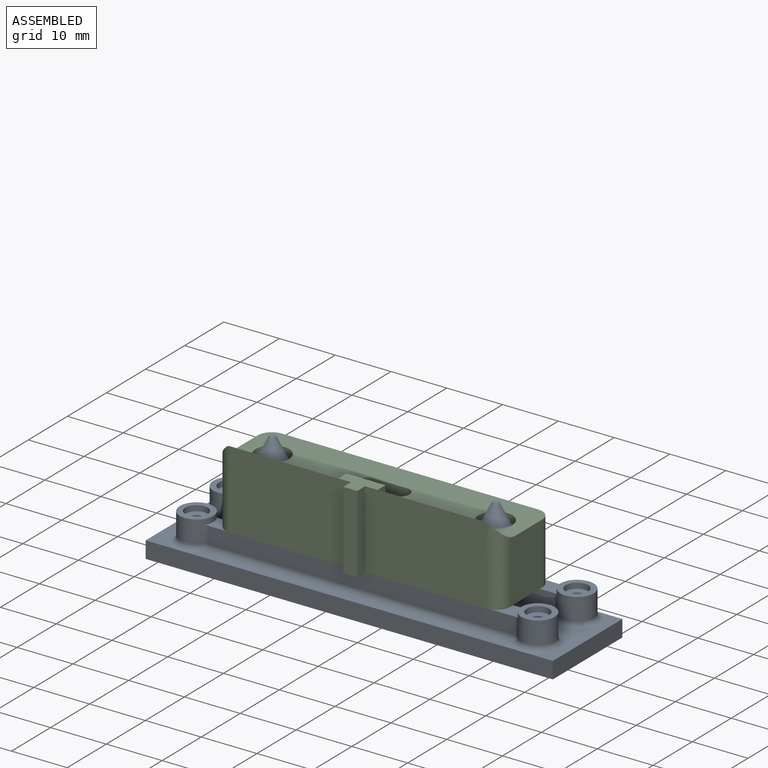
[diagram: assembled view]
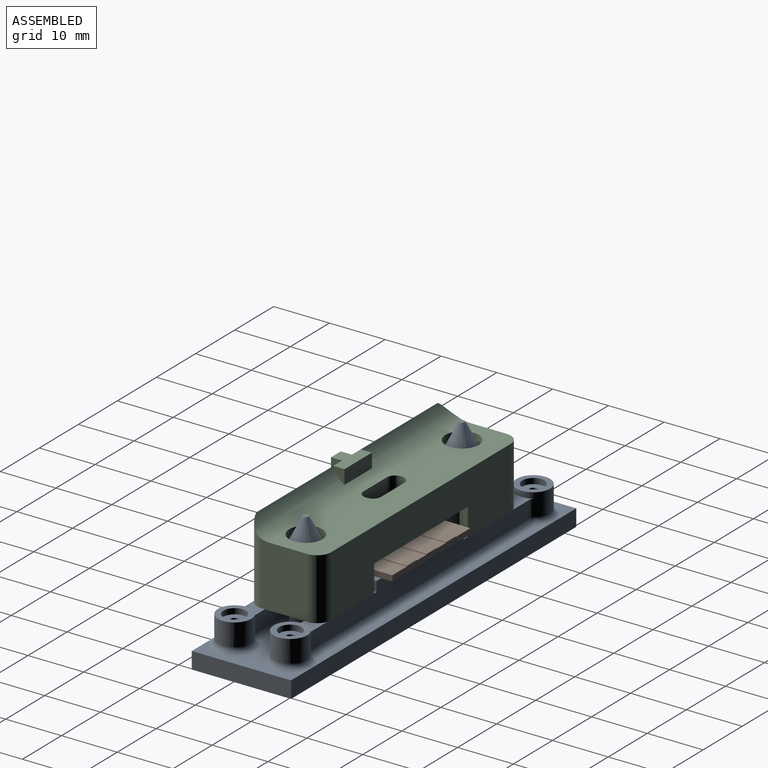
[diagram: assembled view, second angle]
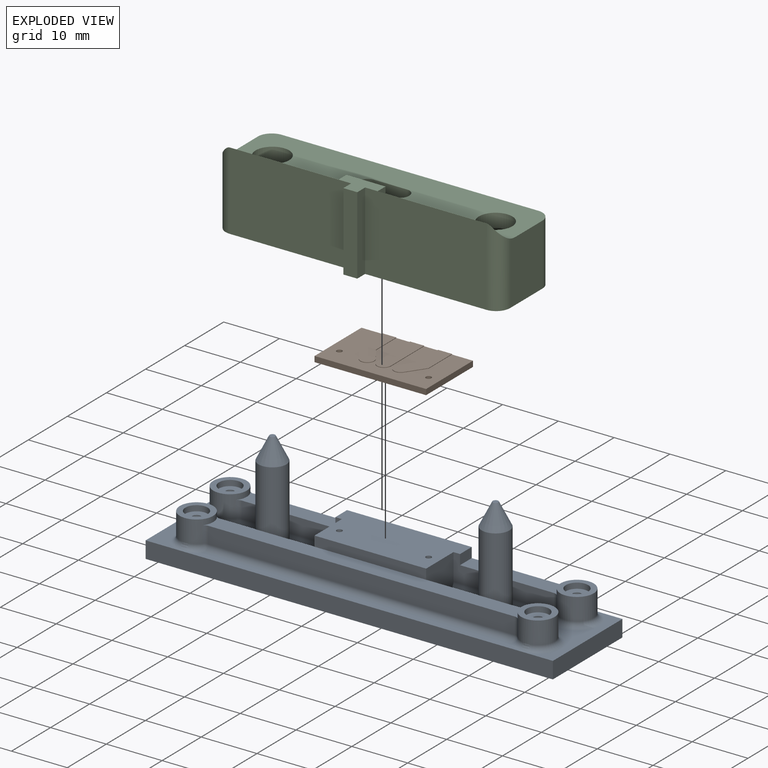
[diagram: exploded view]
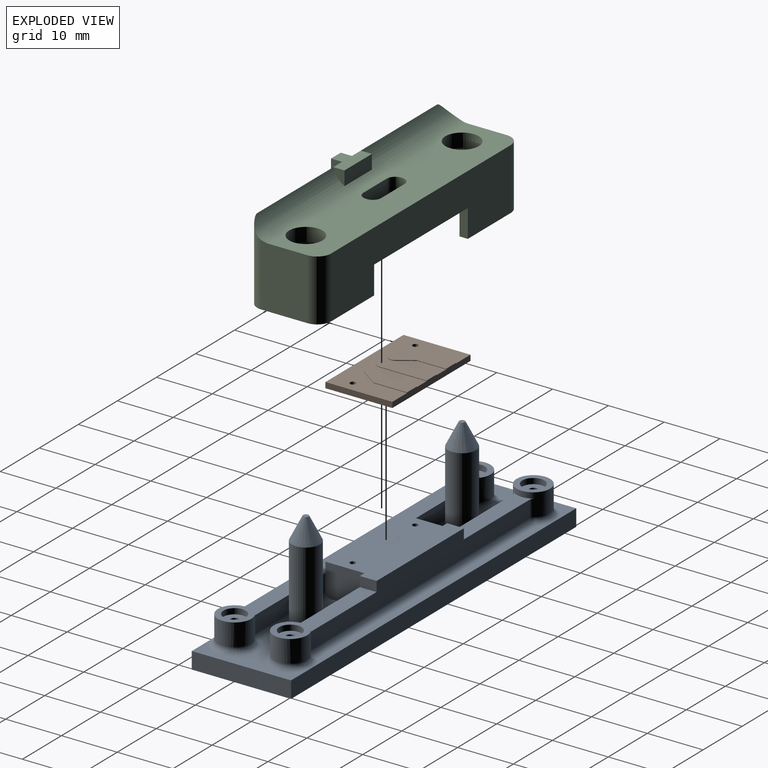
[diagram: exploded view, second angle]
ASSEMBLY  parts=3 mates=2
PART A: 102 faces, bbox 73x19.9x21 mm
  f0: plane 7.55x5mm, normal (0,0,1), area 34.1mm2, adj f20,f96,f99,f101
  f1: plane 60.42x1.4mm, normal (0,0,1), area 80.7mm2, adj f10,f83,f88,f93
  f2: plane 17.8x14.05mm, normal (0,0,1), area 79.1mm2, adj f8,f9,f10,f91,f96,f98,f99,f101
  f3: plane 59.42x1.4mm, normal (0,0,1), area 79.3mm2, adj f8,f75,f80,f86
  f4: plane 17.8x14.05mm, normal (0,0,1), area 85.5mm2, adj f8,f10,f12,f67,f69,f70,f72,f77
  f5: plane 17.58x3.75mm, normal (0,0,1), area 51.2mm2, adj f15,f22,f31,f37,f71,f82
  f6: plane 56.52x3.75mm, normal (0,0,1), area 166.5mm2, adj f17,f18,f19,f27,f29,f38,f66,f76
  f7: plane 7.55x5mm, normal (0,0,1), area 34.1mm2, adj f16,f67,f69,f72
  f8: plane 73.01x3.01mm, normal (0,-1,0), area 219mm2, adj f2,f3,f4,f9,f12,f14,f73,f89
  f9: plane 17.8x3mm, normal (1,0,0), area 53.4mm2, adj f2,f8,f10,f14
  f10: plane 73.01x3.01mm, normal (0,1,0), area 219mm2, adj f1,f2,f4,f9,f12,f14,f79,f95
  f11: cylinder r=0.5mm len=8.8mm, axis (0,0,-1), area 27.6mm2, adj f14,f39
  f12: plane 17.8x3mm, normal (-1,0,0), area 53.4mm2, adj f4,f8,f10,f14
  f13: cylinder r=0.5mm len=8.8mm, axis (0,0,-1), area 27.6mm2, adj f14,f39
  f14: plane 73x17.8mm, normal (0,0,-1), area 1247.6mm2, adj f8,f9,f10,f11,f12,f13,f40,f42
  f15: plane 17.98x4.8mm, normal (0,-1,0), area 56mm2, adj f5,f16,f37,f39,f71,f72
  f16: plane 7x5.8mm, normal (-1,0,0), area 40.2mm2, adj f7,f15,f17,f38,f39,f67,f72
  f17: plane 16.98x3mm, normal (0,1,0), area 50.9mm2, adj f6,f16,f66,f67
  f18: plane 54.96x3mm, normal (0,-1,0), area 164.9mm2, adj f6,f76,f80,f81
  f19: plane 17.98x3mm, normal (0,1,0), area 53.9mm2, adj f6,f20,f92,f96
  f20: plane 7x5.8mm, normal (1,0,0), area 40.2mm2, adj f0,f19,f21,f38,f39,f96,f101
  f21: plane 17.98x4.8mm, normal (0,-1,0), area 56mm2, adj f20,f23,f36,f39,f97,f101
  f22: plane 55.96x4.8mm, normal (0,1,0), area 208.1mm2, adj f5,f23,f36,f37,f39,f82,f87,f88
  f23: plane 17.58x3.75mm, normal (0,0,1), area 51.2mm2, adj f21,f22,f25,f36,f87,f97
  f24: plane 6x6mm, normal (0,0,1), area 15.7mm2, adj f25,f54
  f25: cylinder r=3mm len=6mm, axis (0,0,-1), area 63.2mm2, adj f23,f24,f87,f93,f95,f97,f98
  f26: plane 6x6mm, normal (0,0,1), area 15.7mm2, adj f27,f52
  f27: cylinder r=3mm len=6mm, axis (0,0,-1), area 63.2mm2, adj f6,f26,f81,f86,f89,f91,f92
  f28: plane 6x6mm, normal (0,0,1), area 15.7mm2, adj f29,f50
  f29: cylinder r=3mm len=6mm, axis (0,0,-1), area 63.2mm2, adj f6,f28,f66,f70,f73,f75,f76
  f30: plane 6x6mm, normal (0,0,1), area 15.7mm2, adj f31,f48
  f31: cylinder r=3mm len=6mm, axis (0,0,-1), area 63.2mm2, adj f5,f30,f71,f77,f79,f82,f83
  f32: cylinder r=2.5mm len=13mm, axis (0,0,-1), area 204.2mm2, adj f57,f69
  f33: plane 1x1mm, normal (0,0,1), area 0.8mm2, adj f57
  f34: cylinder r=2.5mm len=13mm, axis (0,0,-1), area 204.2mm2, adj f56,f99
  f35: plane 1x1mm, normal (0,0,1), area 0.8mm2, adj f56
  f36: plane 3x1.8mm, normal (1,0,0), area 5.4mm2, adj f21,f22,f23,f39
  f37: plane 3x1.8mm, normal (-1,0,0), area 5.4mm2, adj f5,f15,f22,f39
  f38: plane 20x1.8mm, normal (0,-1,0), area 36mm2, adj f6,f16,f20,f39
  f39: plane 22.35x10mm, normal (0,0,1), area 205.5mm2, adj f11,f13,f15,f16,f20,f21,f22,f36
  f40: cylinder r=2mm len=6mm, axis (0,0,-1), area 75.4mm2, adj f14,f41
  f41: plane 4x4mm, normal (0,0,-1), area 12.6mm2, adj f40
  f42: cylinder r=2mm len=6mm, axis (0,0,-1), area 75.4mm2, adj f14,f43
  f43: plane 4x4mm, normal (0,0,-1), area 12.6mm2, adj f42
  f44: cylinder r=2mm len=6mm, axis (0,0,-1), area 75.4mm2, adj f14,f45
  f45: plane 4x4mm, normal (0,0,-1), area 12.6mm2, adj f44
  f46: cylinder r=2mm len=6mm, axis (0,0,-1), area 75.4mm2, adj f14,f47
  f47: plane 4x4mm, normal (0,0,-1), area 12.6mm2, adj f46
  f48: cylinder r=2mm len=4mm, axis (0,0,1), area 12.6mm2, adj f30,f49
  f49: plane 4x4mm, normal (0,0,1), area 10.8mm2, adj f48,f64
  f50: cylinder r=2mm len=4mm, axis (0,0,1), area 12.6mm2, adj f28,f51
  f51: plane 4x4mm, normal (0,0,1), area 10.8mm2, adj f50,f62
  f52: cylinder r=2mm len=4mm, axis (0,0,1), area 12.6mm2, adj f26,f53
  f53: plane 4x4mm, normal (0,0,1), area 10.8mm2, adj f52,f60
  f54: cylinder r=2mm len=4mm, axis (0,0,1), area 12.6mm2, adj f24,f55
  f55: plane 4x4mm, normal (0,0,1), area 10.8mm2, adj f54,f58
  f56: cone r=0.5mm half-angle=26.6deg, axis (0,0,-1), area 42.1mm2, adj f34,f35
  f57: cone r=0.5mm half-angle=26.6deg, axis (0,0,-1), area 42.1mm2, adj f32,f33
  f58: cylinder r=0.75mm len=1.5mm, axis (0,0,1), area 1.9mm2, adj f55,f59
  f59: plane 1.5x1.5mm, normal (0,0,1), area 1.8mm2, adj f58
  f60: cylinder r=0.75mm len=1.5mm, axis (0,0,1), area 1.9mm2, adj f53,f61
  f61: plane 1.5x1.5mm, normal (0,0,1), area 1.8mm2, adj f60
  f62: cylinder r=0.75mm len=1.5mm, axis (0,0,1), area 1.9mm2, adj f51,f63
  f63: plane 1.5x1.5mm, normal (0,0,1), area 1.8mm2, adj f62
  f64: cylinder r=0.75mm len=1.5mm, axis (0,0,1), area 1.9mm2, adj f49,f65
  f65: plane 1.5x1.5mm, normal (0,0,1), area 1.8mm2, adj f64
  f66: cylinder r=1mm len=3mm, axis (0,0,-1), area 2.7mm2, adj f6,f17,f29,f68
  f67: cylinder r=1mm len=16.98mm, axis (-1,0,0), area 25mm2, adj f4,f7,f16,f17,f68,f69
  f68: sphere r=1mm, area 0.9mm2, adj f66,f67,f70
  f69: torus R=3.5mm, axis (0,0,1), area 24.7mm2, adj f4,f7,f32,f67,f72
  f70: torus R=4mm, axis (0,0,1), area 20.1mm2, adj f4,f29,f68,f73
  f71: cylinder r=1mm len=3mm, axis (0,0,-1), area 2.7mm2, adj f5,f15,f31,f74
  f72: cylinder r=1mm len=17.98mm, axis (1,0,0), area 26.6mm2, adj f4,f7,f15,f16,f69,f74
  f73: bspline ~2.17x1.06mm, area 2.2mm2, adj f8,f29,f70,f75
  f74: sphere r=1mm, area 0.9mm2, adj f71,f72,f77
  f75: torus R=4mm, axis (0,0,1), area 3.5mm2, adj f3,f29,f73,f78
  f76: cylinder r=1mm len=3mm, axis (0,0,-1), area 2.7mm2, adj f6,f18,f29,f78
  f77: torus R=4mm, axis (0,0,1), area 20.1mm2, adj f4,f31,f74,f79
  f78: sphere r=1mm, area 0.9mm2, adj f75,f76,f80
  f79: bspline ~2.17x1.06mm, area 2.2mm2, adj f10,f31,f77,f83
  f80: cylinder r=1mm len=54.96mm, axis (1,0,0), area 86.3mm2, adj f3,f18,f78,f84
  f81: cylinder r=1mm len=3mm, axis (0,0,-1), area 2.7mm2, adj f6,f18,f27,f84
  f82: cylinder r=1mm len=3mm, axis (0,0,-1), area 2.7mm2, adj f5,f22,f31,f85
  f83: torus R=4mm, axis (0,0,1), area 3.5mm2, adj f1,f31,f79,f85
  f84: sphere r=1mm, area 0.9mm2, adj f80,f81,f86
  f85: sphere r=1mm, area 0.9mm2, adj f82,f83,f88
  f86: torus R=4mm, axis (0,0,1), area 3.5mm2, adj f3,f27,f84,f89
  f87: cylinder r=1mm len=3mm, axis (0,0,-1), area 2.7mm2, adj f22,f23,f25,f90
  f88: cylinder r=1mm len=55.96mm, axis (-1,0,0), area 87.9mm2, adj f1,f22,f85,f90
  f89: bspline ~2.17x1.06mm, area 2.2mm2, adj f8,f27,f86,f91
  f90: sphere r=1mm, area 0.9mm2, adj f87,f88,f93
  f91: torus R=4mm, axis (0,0,1), area 20.1mm2, adj f2,f27,f89,f94
  f92: cylinder r=1mm len=3mm, axis (0,0,-1), area 2.7mm2, adj f6,f19,f27,f94
  f93: torus R=4mm, axis (0,0,1), area 3.5mm2, adj f1,f25,f90,f95
  f94: sphere r=1mm, area 0.9mm2, adj f91,f92,f96
  f95: bspline ~2.17x1.06mm, area 2.2mm2, adj f10,f25,f93,f98
  f96: cylinder r=1mm len=17.98mm, axis (-1,0,0), area 26.6mm2, adj f0,f2,f19,f20,f94,f99
  f97: cylinder r=1mm len=3mm, axis (0,0,-1), area 2.7mm2, adj f21,f23,f25,f100
  f98: torus R=4mm, axis (0,0,1), area 20.1mm2, adj f2,f25,f95,f100
  f99: torus R=3.5mm, axis (0,0,1), area 24.7mm2, adj f0,f2,f34,f96,f101
  f100: sphere r=1mm, area 0.9mm2, adj f97,f98,f101
  f101: cylinder r=1mm len=17.98mm, axis (1,0,0), area 26.6mm2, adj f0,f2,f20,f21,f99,f100
PART B: 24 faces, bbox 20x12x1.1 mm
  f0: plane 20x12mm, normal (0,0,1), area 164.2mm2, adj f1,f2,f3,f4,f5,f6,f8,f9
  f1: plane 20x1mm, normal (0,1,0), area 20mm2, adj f0,f2,f6,f7
  f2: plane 12x1mm, normal (-1,0,0), area 12mm2, adj f0,f1,f3,f7
  f3: plane 20x1.1mm, normal (0,-1,0), area 20.8mm2, adj f0,f2,f6,f7,f9,f10,f11,f14
  f4: cylinder r=0.5mm len=1mm, axis (0,0,-1), area 3.1mm2, adj f0,f7
  f5: cylinder r=0.5mm len=1mm, axis (0,0,-1), area 3.1mm2, adj f0,f7
  f6: plane 12x1mm, normal (1,0,0), area 12mm2, adj f0,f1,f3,f7
  f7: plane 20x12mm, normal (0,0,-1), area 238.4mm2, adj f1,f2,f3,f4,f5,f6
  f8: cylinder r=1.25mm len=2.5mm, axis (0,0,-1), area 0.4mm2, adj f0,f9,f10,f11
  f9: plane 8.5x0.1mm, normal (-1,0,0), area 0.9mm2, adj f0,f3,f8,f11
  f10: plane 8.5x0.1mm, normal (1,0,0), area 0.9mm2, adj f0,f3,f8,f11
  f11: plane 9.75x2.5mm, normal (0,0,1), area 23.7mm2, adj f3,f8,f9,f10
  f12: cylinder r=1.25mm len=2.28mm, axis (0,0,-1), area 0.4mm2, adj f0,f13,f16,f17
  f13: plane 3.21x2.22mm, normal (-0.82,0.57,0), area 0.4mm2, adj f0,f12,f14,f17
  f14: plane 6x0.1mm, normal (-1,0,0), area 0.6mm2, adj f0,f3,f13,f17
  f15: plane 5.22x0.1mm, normal (1,0,0), area 0.5mm2, adj f0,f3,f16,f17
  f16: plane 2.57x1.78mm, normal (0.82,-0.57,0), area 0.3mm2, adj f0,f12,f15,f17
  f17: plane 9.75x4.5mm, normal (0,0,1), area 25.3mm2, adj f3,f12,f13,f14,f15,f16
  f18: cylinder r=1.25mm len=2.28mm, axis (0,0,-1), area 0.4mm2, adj f0,f19,f22,f23
  f19: plane 2.57x1.78mm, normal (-0.82,-0.57,0), area 0.3mm2, adj f0,f18,f20,f23
  f20: plane 5.22x0.1mm, normal (-1,0,0), area 0.5mm2, adj f0,f3,f19,f23
  f21: plane 6x0.1mm, normal (1,0,0), area 0.6mm2, adj f0,f3,f22,f23
  f22: plane 3.21x2.22mm, normal (0.82,0.57,0), area 0.4mm2, adj f0,f18,f21,f23
  f23: plane 9.75x4.5mm, normal (0,0,1), area 25.3mm2, adj f3,f18,f19,f20,f21,f22
PART C: 52 faces, bbox 51x15.3x14 mm
  f0: plane 19.5x8.5mm, normal (0,1,0), area 165.7mm2, adj f1,f17,f28,f46
  f1: plane 48x10.25mm, normal (0,0,-1), area 364.4mm2, adj f0,f14,f16,f27,f28,f29,f30,f31
  f2: cylinder r=4mm len=51mm, axis (1,0,0), area 239.1mm2, adj f10,f13,f14,f16,f19,f20,f22,f23
  f3: cylinder r=1.5mm len=6mm, axis (0,0,-1), area 14.1mm2, adj f4,f15,f41,f42
  f4: plane 6x6mm, normal (0,1,0), area 36mm2, adj f3,f5,f41,f42
  f5: cylinder r=1.5mm len=6mm, axis (0,0,-1), area 14.1mm2, adj f4,f6,f41,f42
  f6: plane 6x0.2mm, normal (1,0,0), area 1.2mm2, adj f5,f7,f41,f42
  f7: cylinder r=1.5mm len=6mm, axis (0,0,-1), area 14.1mm2, adj f6,f8,f41,f42
  f8: plane 6x6mm, normal (0,-1,0), area 36mm2, adj f7,f9,f41,f42
  f9: cylinder r=1.5mm len=6mm, axis (0,0,-1), area 14.1mm2, adj f8,f15,f41,f42
  f10: plane 11.24x8.25mm, normal (1,0,0), area 90.9mm2, adj f2,f11,f17,f20,f42
  f11: cylinder r=2.5mm len=11mm, axis (0,0,-1), area 43.2mm2, adj f10,f17,f21,f42
  f12: cylinder r=2.5mm len=11mm, axis (0,0,-1), area 43.2mm2, adj f13,f17,f21,f42
  f13: plane 11.24x8.25mm, normal (-1,0,0), area 90.9mm2, adj f2,f12,f17,f22,f42
  f14: cylinder r=3mm len=6mm, axis (0,0,-1), area 47.1mm2, adj f1,f2,f42
  f15: plane 6x0.2mm, normal (-1,0,0), area 1.2mm2, adj f3,f9,f41,f42
  f16: cylinder r=3mm len=6mm, axis (0,0,-1), area 47.1mm2, adj f1,f2,f42
  f17: plane 51x15.25mm, normal (0,0,-1), area 151.7mm2, adj f0,f10,f11,f12,f13,f18,f19,f20
  f18: plane 14x2mm, normal (1,0,0), area 28mm2, adj f17,f19,f25,f26
  f19: plane 21.75x14mm, normal (0,-1,0), area 304.5mm2, adj f2,f17,f18,f20,f26
  f20: cylinder r=2.5mm len=14mm, axis (0,0,-1), area 49.4mm2, adj f2,f10,f17,f19
  f21: plane 46x11mm, normal (0,1,0), area 386mm2, adj f11,f12,f17,f42,f49,f50,f51
  f22: cylinder r=2.5mm len=14mm, axis (0,0,-1), area 49.4mm2, adj f2,f13,f17,f23
  f23: plane 21.75x14mm, normal (0,-1,0), area 304.5mm2, adj f2,f17,f22,f24,f26
  f24: plane 14x2mm, normal (-1,0,0), area 28mm2, adj f17,f23,f25,f26
  f25: plane 14x2.5mm, normal (0,-1,0), area 35mm2, adj f17,f18,f24,f26
  f26: plane 7x4mm, normal (0,0,1), area 19mm2, adj f18,f19,f23,f24,f25,f43,f44,f45
  f27: plane 19.5x8.5mm, normal (0,1,0), area 165.8mm2, adj f1,f17,f40,f47
  f28: cylinder r=1mm len=8.5mm, axis (0,0,-1), area 13.4mm2, adj f0,f1,f17,f29
  f29: plane 8.5x8.25mm, normal (-1,0,0), area 70.1mm2, adj f1,f17,f28,f30
  f30: cylinder r=1mm len=8.5mm, axis (0,0,-1), area 13.4mm2, adj f1,f17,f29,f31
  f31: plane 46x8.5mm, normal (0,-1,0), area 271mm2, adj f1,f17,f30,f32,f49,f50,f51
  f32: cylinder r=1mm len=8.5mm, axis (0,0,-1), area 13.4mm2, adj f1,f17,f31,f33
  f33: plane 8.5x8.25mm, normal (1,0,0), area 70.1mm2, adj f1,f17,f32,f40
  f34: cylinder r=3mm len=3.5mm, axis (0,0,-1), area 16.8mm2, adj f1,f35,f39,f41
  f35: plane 6x3.5mm, normal (0,1,0), area 21mm2, adj f1,f34,f36,f41
  f36: cylinder r=3mm len=3.5mm, axis (0,0,-1), area 16.8mm2, adj f1,f35,f37,f41
  f37: cylinder r=3mm len=3.5mm, axis (0,0,-1), area 16.8mm2, adj f1,f36,f38,f41
  f38: plane 6x3.5mm, normal (0,-1,0), area 21mm2, adj f1,f37,f39,f41
  f39: cylinder r=3mm len=3.5mm, axis (0,0,-1), area 16.8mm2, adj f1,f34,f38,f41
  f40: cylinder r=1mm len=8.5mm, axis (0,0,-1), area 13.4mm2, adj f1,f17,f27,f33
  f41: plane 12x6.2mm, normal (0,0,-1), area 39.8mm2, adj f3,f4,f5,f6,f7,f8,f9,f15
  f42: plane 51x9.38mm, normal (0,0,1), area 392.9mm2, adj f2,f3,f4,f5,f6,f7,f8,f9
  f43: plane 7x2.53mm, normal (0,1,0), area 17.7mm2, adj f2,f26,f44,f45
  f44: plane 2.53x2mm, normal (-1,0,0), area 3.3mm2, adj f2,f26,f43
  f45: plane 2.53x2mm, normal (1,0,0), area 3.3mm2, adj f2,f26,f43
  f46: plane 8.5x0.5mm, normal (1,0,0), area 4.3mm2, adj f0,f1,f17,f48
  f47: plane 8.5x0.5mm, normal (-1,0,0), area 4.3mm2, adj f1,f17,f27,f48
  f48: plane 8.5x7mm, normal (0,1,0), area 59.5mm2, adj f1,f17,f46,f47
  f49: plane 5x1.5mm, normal (1,0,0), area 7.5mm2, adj f17,f21,f31,f51
  f50: plane 5x1.5mm, normal (-1,0,0), area 7.5mm2, adj f17,f21,f31,f51
  f51: plane 24x1.5mm, normal (0,0,-1), area 36mm2, adj f21,f31,f49,f50
PLACE A t=(-4.23,12.85,11.6)mm
PLACE B rot(axis=(0,0,1),180deg) t=(-4.23,12.85,20.4)mm
PLACE C t=(-4.23,12.85,18.6)mm
MATE fastened A.f32 <-> C.f16  axis (0,0,1) through (-24.23,12.85,28.6)mm
MATE fastened B.f5 <-> A.f13  axis (0,0,-1) through (-12.23,12.85,20.4)mm
